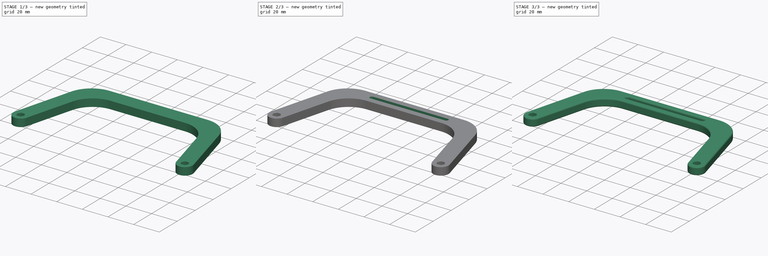
[diagram: build sequence overview — one tinted view per stage of 3, left to right]
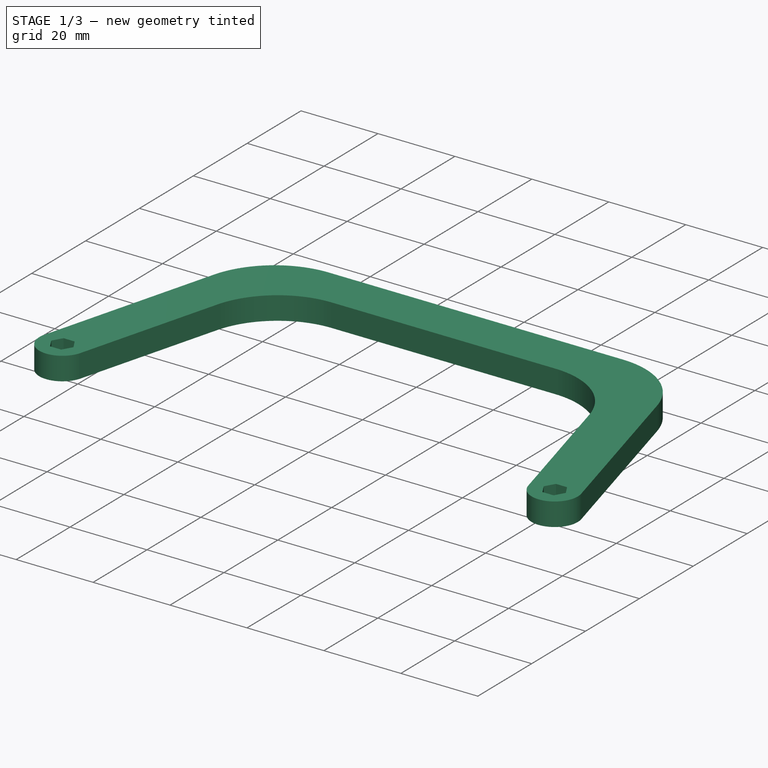
[diagram: stage 1 of 3 — iso view after this stage's code; geometry added in this stage tinted green]
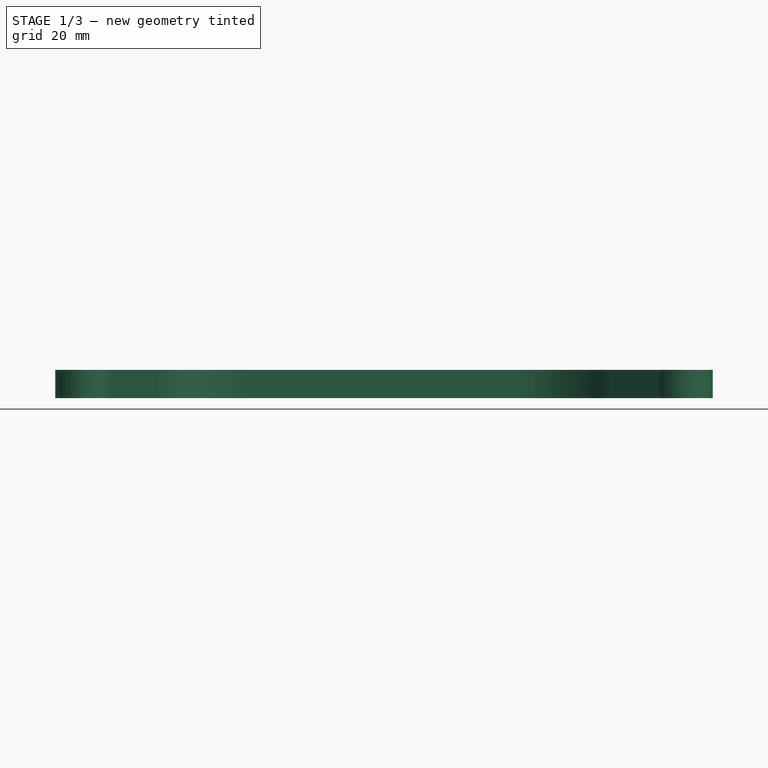
[diagram: stage 1 of 3 — front view after this stage's code; geometry added in this stage tinted green]
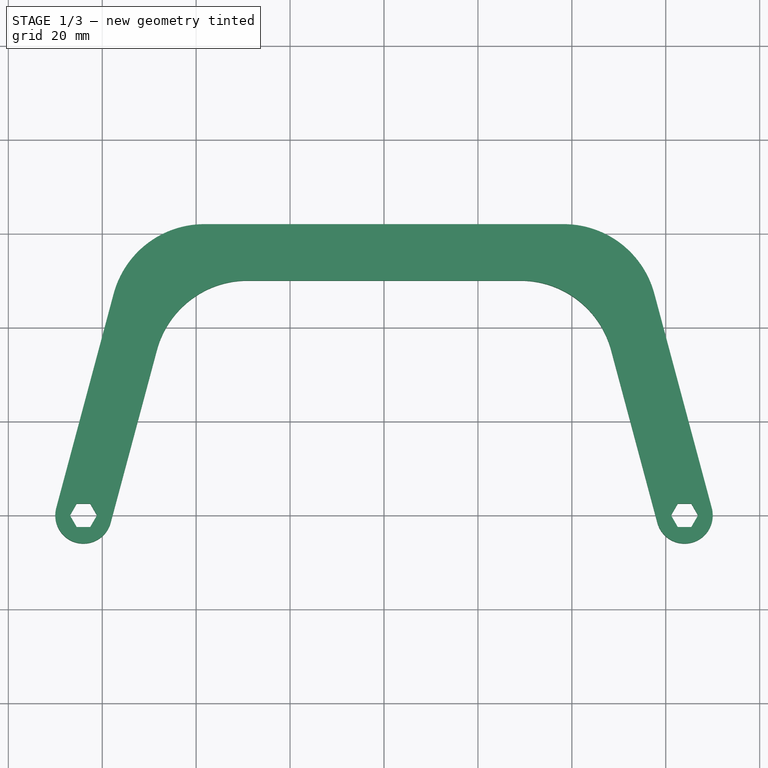
[diagram: stage 1 of 3 — top view after this stage's code; geometry added in this stage tinted green]
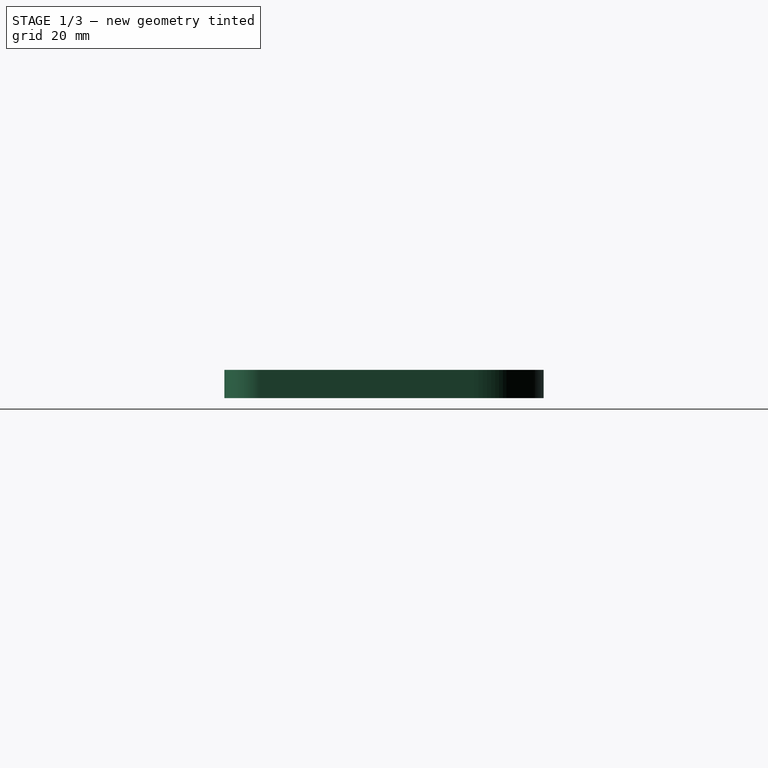
[diagram: stage 1 of 3 — right view after this stage's code; geometry added in this stage tinted green]
FCSTD DOCUMENT  (FreeCAD 0.21R33771 (Git))
Label: Everything_Controller_Handle
License: All rights reserved
LicenseURL: https://en.wikipedia.org/wiki/All_rights_reserved
objects: PartDesign::Fillet×3, Sketcher::SketchObject×2, PartDesign::Pad×1, PartDesign::Pocket×1, PartDesign::Body×1
note: 13 computed .brp shape members not serialized (recipe doc carries the construction recipe); baked Part::Feature solids carry a one-line shape summary decoded from their .brp

FEATURE [Sketcher::SketchObject] Sketch
  FullyConstrained = true
  MapMode = 5
  Support = -> [XY_Plane]
  sketch-geometry (22):
    g0: LineSegment StartX=-62.5566 StartY=2.5 StartZ=0 EndX=-65.4434 EndY=2.5 EndZ=0
    g1: LineSegment StartX=-65.4434 StartY=2.5 StartZ=0 EndX=-66.8868 EndY=-4e-16 EndZ=0
    g2: LineSegment StartX=-66.8868 StartY=-4e-16 StartZ=0 EndX=-65.4434 EndY=-2.5 EndZ=0
    g3: LineSegment StartX=-65.4434 StartY=-2.5 StartZ=0 EndX=-62.5566 EndY=-2.5 EndZ=0
    g4: LineSegment StartX=-62.5566 StartY=-2.5 StartZ=0 EndX=-61.1132 EndY=4e-16 EndZ=0
    g5: LineSegment StartX=-61.1132 StartY=4e-16 StartZ=0 EndX=-62.5566 EndY=2.5 EndZ=0
    g6: Circle CenterX=-64 CenterY=0 CenterZ=0 NormalX=0 NormalY=0 NormalZ=1 AngleXU=0 Radius=2.88675
    g7: LineSegment StartX=65.4434 StartY=2.5 StartZ=0 EndX=62.5566 EndY=2.5 EndZ=0
    g8: LineSegment StartX=62.5566 StartY=2.5 StartZ=0 EndX=61.1132 EndY=4e-16 EndZ=0
    g9: LineSegment StartX=61.1132 StartY=4e-16 StartZ=0 EndX=62.5566 EndY=-2.5 EndZ=0
    g10: LineSegment StartX=62.5566 StartY=-2.5 StartZ=0 EndX=65.4434 EndY=-2.5 EndZ=0
    g11: LineSegment StartX=65.4434 StartY=-2.5 StartZ=0 EndX=66.8868 EndY=0 EndZ=0
    g12: LineSegment StartX=66.8868 StartY=0 StartZ=0 EndX=65.4434 EndY=2.5 EndZ=0
    g13: Circle CenterX=64 CenterY=0 CenterZ=0 NormalX=0 NormalY=0 NormalZ=1 AngleXU=0 Radius=2.88675
    g14: ArcOfCircle CenterX=-64 CenterY=0 CenterZ=0 NormalX=0 NormalY=0 NormalZ=1 AngleXU=0 Radius=6 StartAngle=2.87979 EndAngle=6.02139
    g15: ArcOfCircle CenterX=64 CenterY=0 CenterZ=0 NormalX=0 NormalY=0 NormalZ=1 AngleXU=0 Radius=6 StartAngle=3.40339 EndAngle=6.54498
    g16: LineSegment StartX=-58.2044 StartY=-1.55291 StartZ=0 EndX=-44.3909 EndY=50 EndZ=0
    g17: LineSegment StartX=-44.3909 StartY=50 StartZ=0 EndX=44.3909 EndY=50 EndZ=0
    g18: LineSegment StartX=44.3909 StartY=50 StartZ=0 EndX=58.2044 EndY=-1.55291 EndZ=0
    g19: LineSegment StartX=69.7956 StartY=1.55291 StartZ=0 EndX=53.5988 EndY=62 EndZ=0
    g20: LineSegment StartX=53.5988 StartY=62 StartZ=0 EndX=-53.5988 EndY=62 EndZ=0
    g21: LineSegment StartX=-53.5988 StartY=62 StartZ=0 EndX=-69.7956 EndY=1.55291 EndZ=0
  constraints (55):
    c: Coincident(g0,g1)
    c: Coincident(g1,g2)
    c: Coincident(g2,g3)
    c: Coincident(g3,g4)
    c: Coincident(g4,g5)
    c: Coincident(g5,g0)
    c: Equal(g0, g1-g5) x5
    c: PointOnObject(g0,g6)
    c: PointOnObject(g1,g6)
    c: PointOnObject(g2,g6)
    c: PointOnObject(g3,g6)
    c: PointOnObject(g4,g6)
    c: PointOnObject(g5,g6)
    c: Coincident(g7,g8)
    c: Coincident(g8,g9)
    c: Coincident(g9,g10)
    c: Coincident(g10,g11)
    c: Coincident(g11,g12)
    c: Coincident(g12,g7)
    c: Equal(g7, g8-g12) x5
    c: PointOnObject(g7,g13)
    c: PointOnObject(g8,g13)
    c: PointOnObject(g9,g13)
    c: PointOnObject(g10,g13)
    c: PointOnObject(g11,g13)
    c: PointOnObject(g12,g13)
    c: Horizontal(g7)
    c: Horizontal(g0)
    c: DistanceY(g10,g7) = 5
    c: DistanceY(g3,g0) = 5
    c: PointOnObject(g6,g-1)
    c: PointOnObject(g13,g-1)
    c: DistanceX(g6,g13) = 128
    c: DistanceX(g6,g-1) = 64
    c: Coincident(g14,g6)
    c: Coincident(g15,g13)
    c: Coincident(g17,g16)
    c: Horizontal(g17)
    c: Coincident(g18,g17)
    c: Coincident(g20,g19)
    c: Horizontal(g20)
    c: Coincident(g21,g20)
    c: Parallel(g19,g18)
    c: Parallel(g16,g21)
    c: Tangent(g16,g14) = -1.5708
    c: Tangent(g21,g14) = -1.5708
    c: Tangent(g18,g15) = -1.5708
    c: Tangent(g19,g15) = -1.5708
    c: Angle(g18,g-1) = 1.309
    c: Angle(g-1,g16) = 1.309
    c: Radius(g14) = 6
    c: Radius(g15) = 6
    c: DistanceY(g-1,g17) = 50
    c: DistanceX(g17,g17) = 88.7818
    c: DistanceY(g16,g20) = 12
FEATURE [PartDesign::Pad] Pad
  Direction = (0,0,1)
  Length = 6
  Length2 = 10
  Profile = -> Sketch
  ReferenceAxis = -> Sketch [N_Axis]
  Type = 0
FEATURE [PartDesign::Fillet] Fillet
  Base = -> Pad [Edge20,Edge17,Edge5,Edge8]
  BaseFeature = -> Pad
  Radius = 20
  SupportTransform = false
  UseAllEdges = false
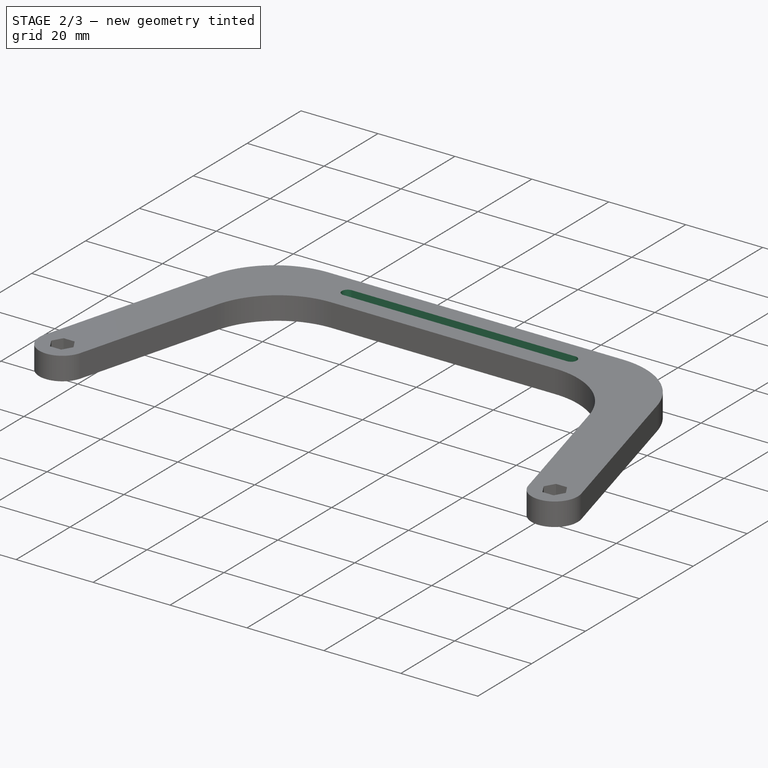
[diagram: stage 2 of 3 — iso view after this stage's code; geometry added in this stage tinted green]
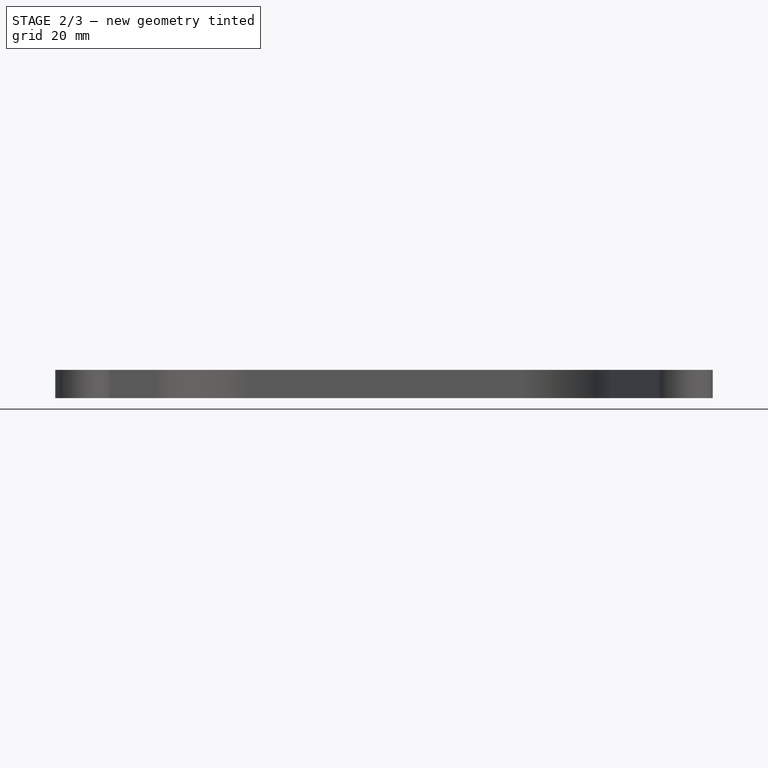
[diagram: stage 2 of 3 — front view after this stage's code; geometry added in this stage tinted green]
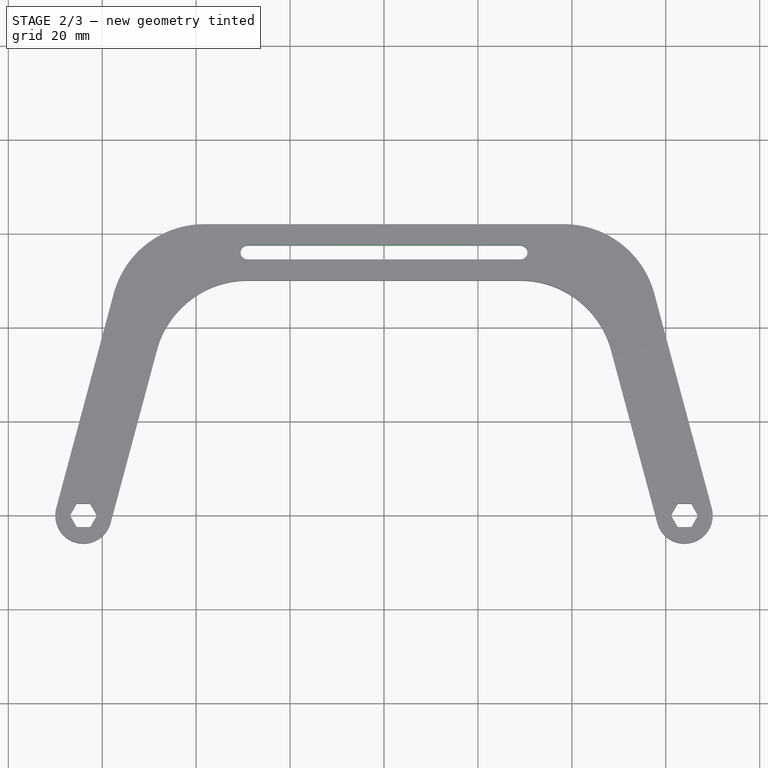
[diagram: stage 2 of 3 — top view after this stage's code; geometry added in this stage tinted green]
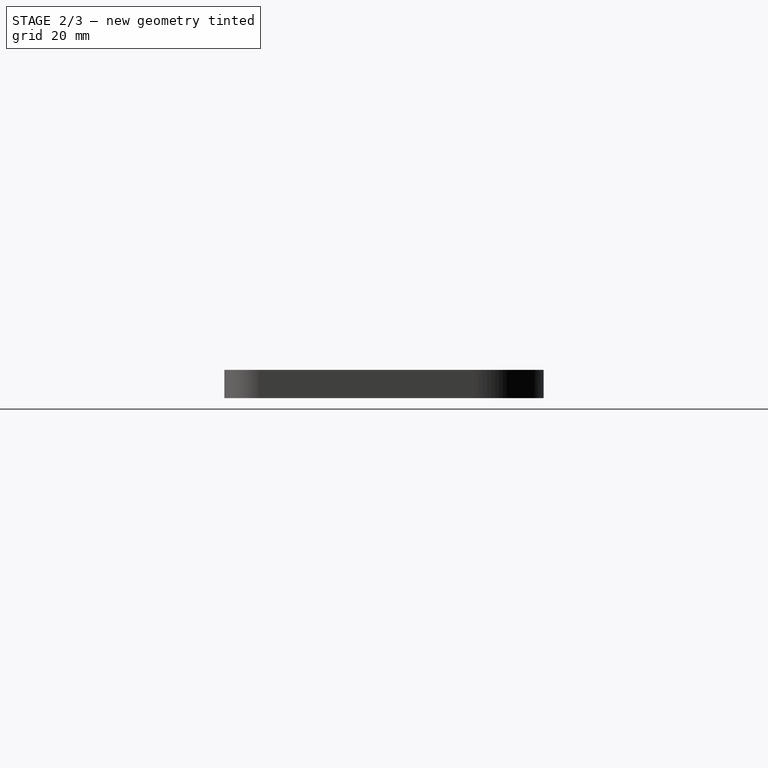
[diagram: stage 2 of 3 — right view after this stage's code; geometry added in this stage tinted green]
FEATURE [Sketcher::SketchObject] Sketch001
  ExternalGeometry = -> [Fillet]
  FullyConstrained = true
  MapMode = 5
  Placement = pos=(0,0,6) rot=(0,0,1;0rad)
  Support = -> [Fillet]
  sketch-geometry (4):
    g0: ArcOfCircle CenterX=-29.0443 CenterY=56 CenterZ=0 NormalX=0 NormalY=0 NormalZ=1 AngleXU=0 Radius=1.5 StartAngle=1.5708 EndAngle=4.71239
    g1: ArcOfCircle CenterX=29.0443 CenterY=56 CenterZ=0 NormalX=0 NormalY=0 NormalZ=1 AngleXU=0 Radius=1.5 StartAngle=4.71239 EndAngle=7.85398
    g2: LineSegment StartX=-29.0443 StartY=54.5 StartZ=0 EndX=29.0443 EndY=54.5 EndZ=0
    g3: LineSegment StartX=29.0443 StartY=57.5 StartZ=0 EndX=-29.0443 EndY=57.5 EndZ=0
  constraints (10):
    c: Tangent(g0,g2) = -1.5708
    c: Tangent(g2,g1) = -1.5708
    c: Tangent(g1,g3) = -1.5708
    c: Tangent(g3,g0) = -1.5708
    c: Equal(g0,g1)
    c: Horizontal(g2)
    c: DistanceY(g1,g1) = 3
    c: Vertical(g0,g-4)
    c: Vertical(g1,g-4)
    c: DistanceY(g-4,g1) = 4.5
FEATURE [PartDesign::Pocket] Pocket
  BaseFeature = -> Fillet
  Direction = (0,0,-1)
  Length = 6
  Length2 = 5
  Profile = -> Sketch001
  ReferenceAxis = -> Sketch001 [N_Axis]
  Type = 0
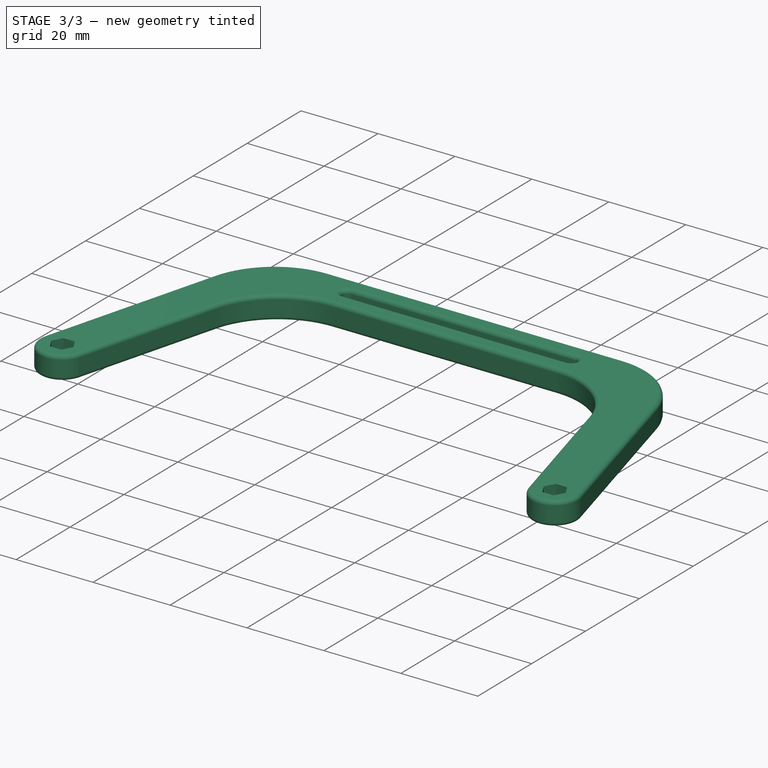
[diagram: stage 3 of 3 — iso view after this stage's code; geometry added in this stage tinted green]
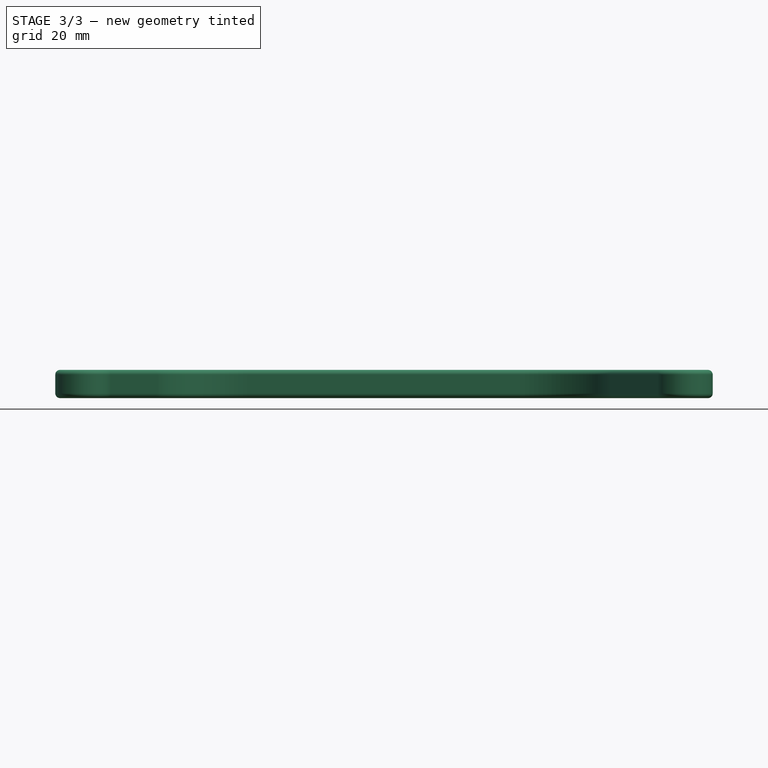
[diagram: stage 3 of 3 — front view after this stage's code; geometry added in this stage tinted green]
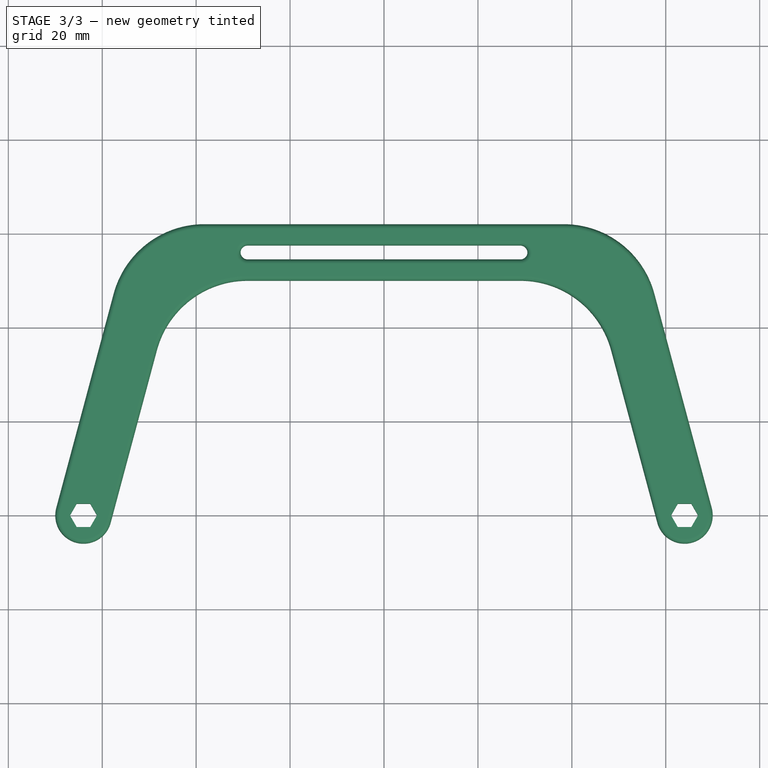
[diagram: stage 3 of 3 — top view after this stage's code; geometry added in this stage tinted green]
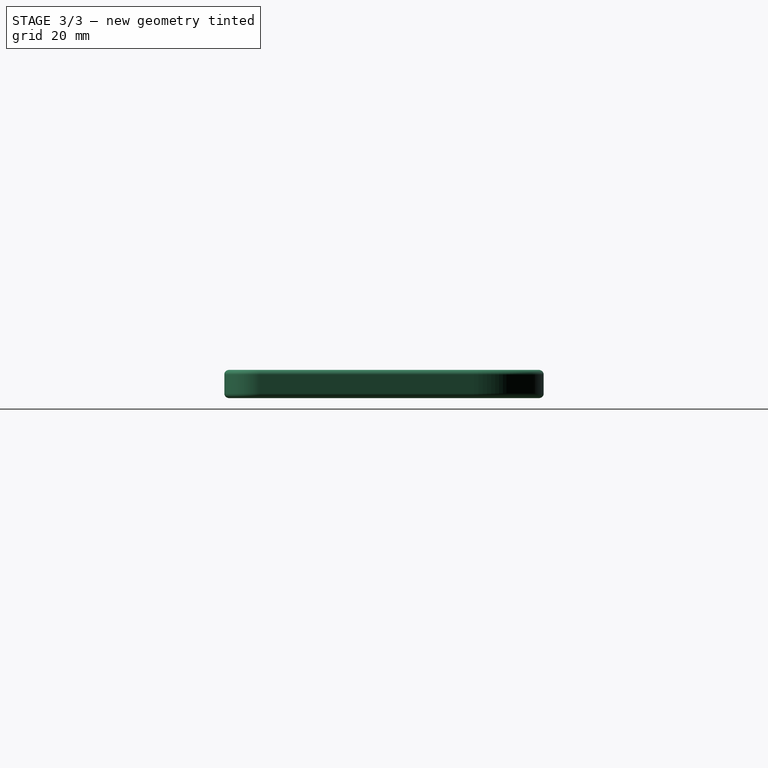
[diagram: stage 3 of 3 — right view after this stage's code; geometry added in this stage tinted green]
FEATURE [PartDesign::Fillet] Fillet001
  Base = -> Pocket [Edge60,Edge31]
  BaseFeature = -> Pocket
  Radius = 1
  SupportTransform = false
  UseAllEdges = false
FEATURE [PartDesign::Fillet] Fillet002
  Base = -> Fillet001 [Edge41,Edge10]
  BaseFeature = -> Fillet001
  Radius = 1
  SupportTransform = false
  UseAllEdges = false
FEATURE [PartDesign::Body] Body
  Group = -> [Sketch,Pad,Fillet,Sketch001,Pocket,Fillet001,Fillet002]
  Origin = -> Origin
  Tip = -> Fillet002
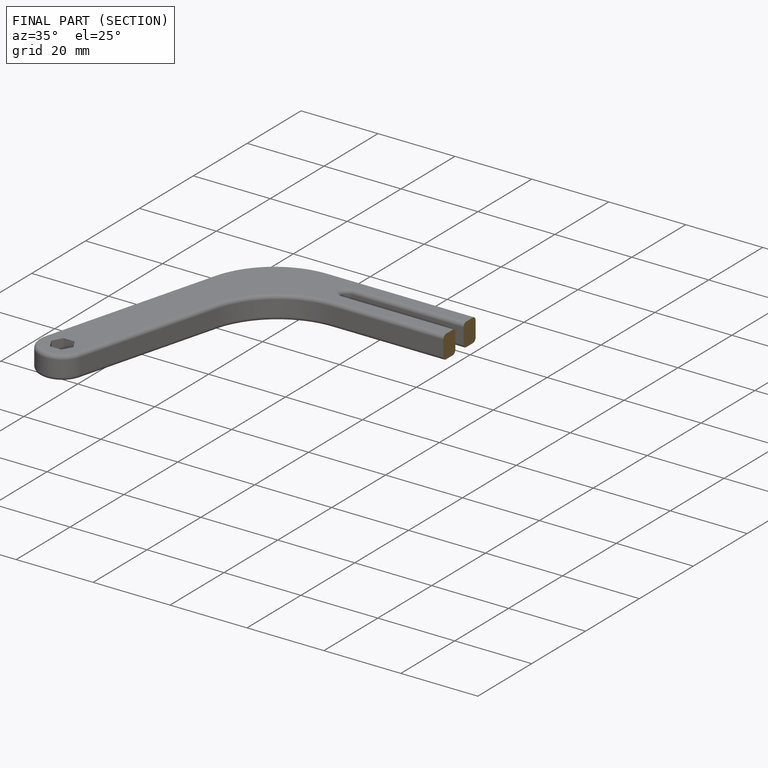
[diagram: finished part — half-section view (interior)]
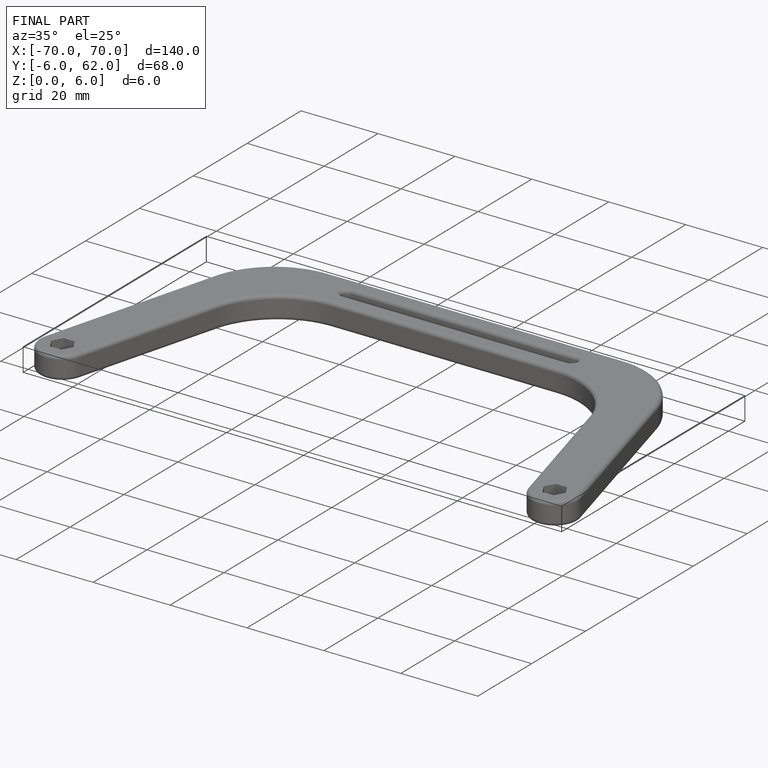
[diagram: finished part — iso view with bounding-box wireframe]
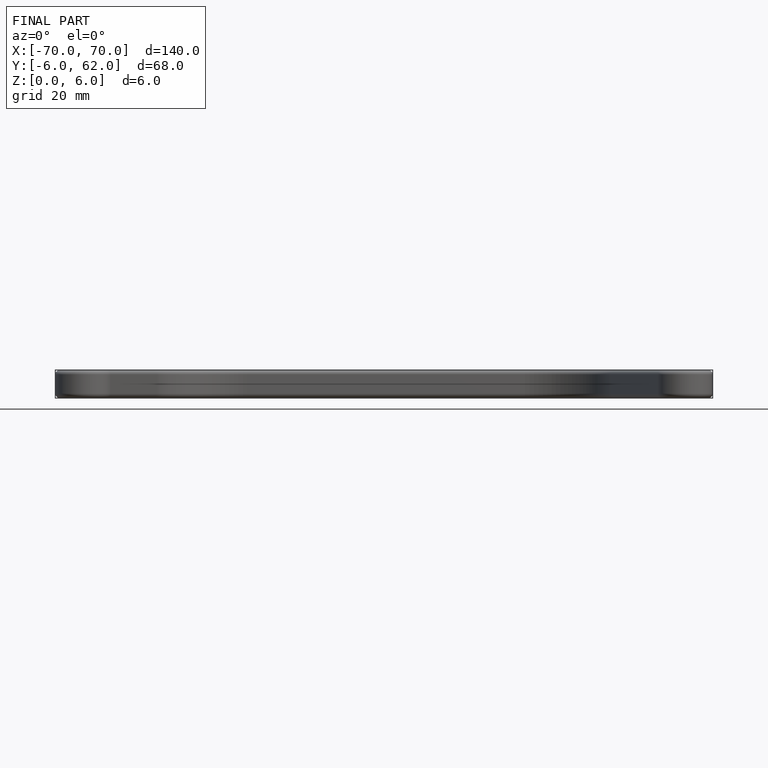
[diagram: finished part — front view with bounding-box wireframe]
